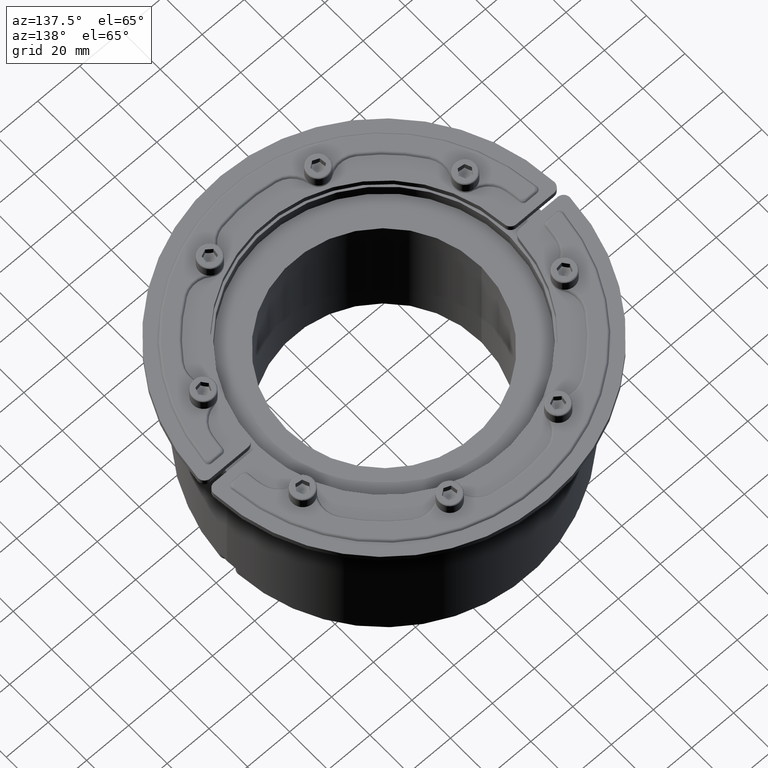
[diagram: clean part render]
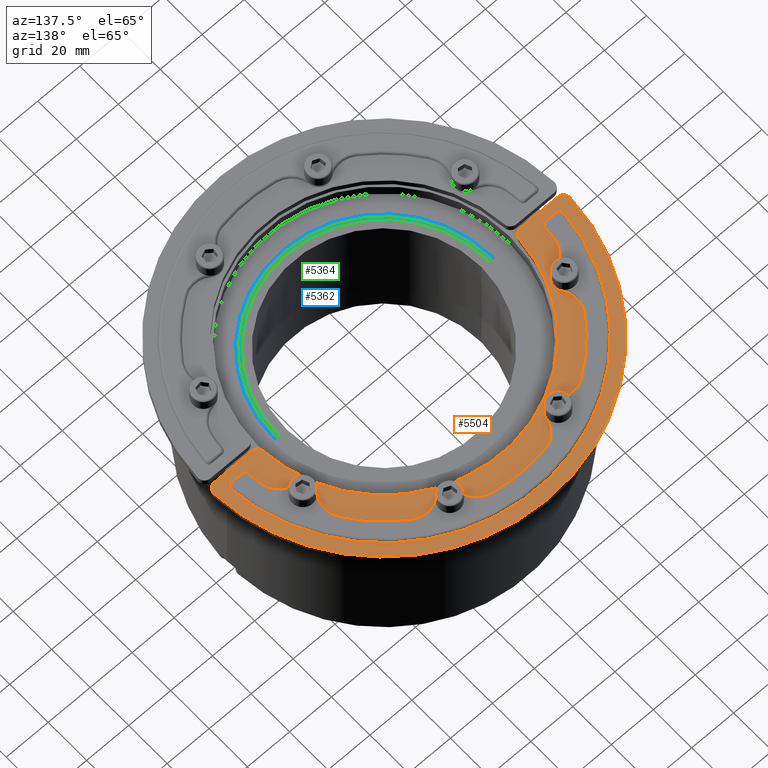
[diagram: same view with three faces highlighted in distinct colors, each labeled with its STEP entity id]
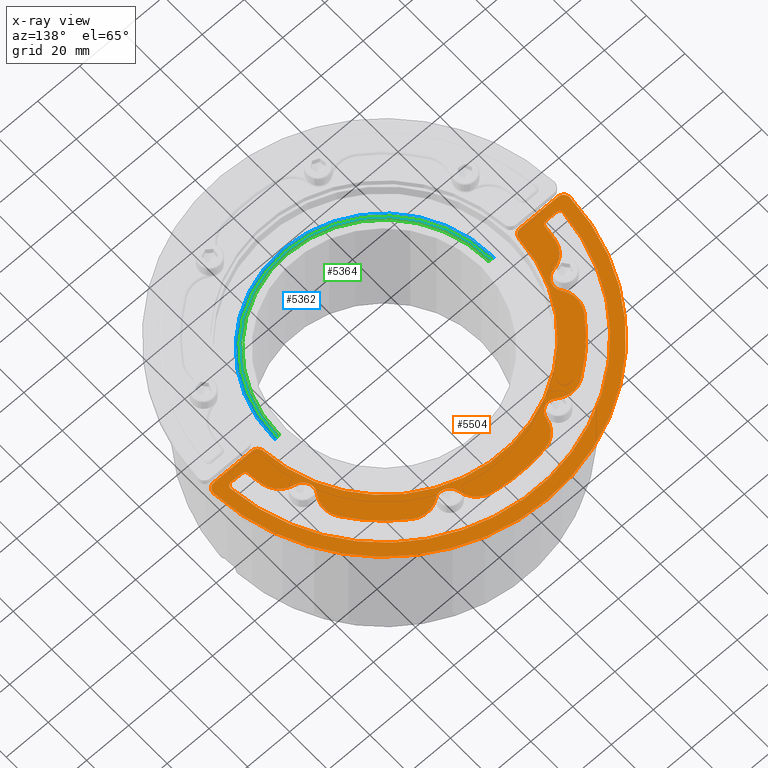
[diagram: x-ray of the same camera — body ghosted, the three highlighted faces saturated]
A machine part, auxiliary view with three faces highlighted in distinct colors.
The next image is the same camera in x-ray (body ghosted, the three faces saturated) — at least one of them is partly hidden behind the body in this view.
Their STEP definitions:

[orange] entity #5504 — the highlighted planar face has unit normal (0, 0, 1).
#60=B_SPLINE_CURVE_WITH_KNOTS('',3,(#9772,#9773,#9774,#9775,#9776,#9777,
#9778,#9779,#9780,#9781),.UNSPECIFIED.,.F.,.F.,(4,2,2,2,4),(0.,0.0737591383660685,
0.137984486119956,0.197526059319079,0.259689030170844),.UNSPECIFIED.);
#63=B_SPLINE_CURVE_WITH_KNOTS('',3,(#9814,#9815,#9816,#9817,#9818,#9819,
#9820,#9821,#9822,#9823,#9824,#9825),.UNSPECIFIED.,.F.,.F.,(4,2,2,2,2,4),
(0.,0.0768242660704358,0.140348230484178,0.20075593971541,0.245620467000132,
0.292974545126441),.UNSPECIFIED.);
#66=B_SPLINE_CURVE_WITH_KNOTS('',3,(#9859,#9860,#9861,#9862,#9863,#9864,
#9865,#9866,#9867,#9868),.UNSPECIFIED.,.F.,.F.,(4,2,2,2,4),(0.,0.0737731416211753,
0.138011891422635,0.200687434417592,0.259700462694515),.UNSPECIFIED.);
#69=B_SPLINE_CURVE_WITH_KNOTS('',3,(#9900,#9901,#9902,#9903,#9904,#9905,
#9906,#9907,#9908,#9909,#9910,#9911),.UNSPECIFIED.,.F.,.F.,(4,2,2,2,2,4),
(0.,0.0768437936843456,0.140401779394522,0.200734305158943,0.245638052211019,
0.292968852687228),.UNSPECIFIED.);
#125=FACE_BOUND('',#943,.T.);
#220=PLANE('',#6145);
#615=FACE_OUTER_BOUND('',#942,.T.);
#942=EDGE_LOOP('',(#4445,#4446,#4447,#4448,#4449,#4450,#4451,#4452));
#943=EDGE_LOOP('',(#4453,#4454,#4455,#4456,#4457,#4458,#4459,#4460,#4461,
#4462,#4463,#4464,#4465,#4466,#4467,#4468,#4469,#4470,#4471,#4472,#4473,
#4474,#4475,#4476));
#1238=LINE('',#9426,#1530);
#1244=LINE('',#9441,#1536);
#1261=LINE('',#9788,#1553);
#1262=LINE('',#9875,#1554);
#1530=VECTOR('',#7341,10.);
#1536=VECTOR('',#7357,10.);
#1553=VECTOR('',#7568,10.);
#1554=VECTOR('',#7575,10.);
#1866=CIRCLE('',#6021,3.);
#1867=CIRCLE('',#6024,3.);
#1868=CIRCLE('',#6026,3.);
#1870=CIRCLE('',#6030,3.);
#1922=CIRCLE('',#6103,5.);
#1923=CIRCLE('',#6105,9.99999999999993);
#1924=CIRCLE('',#6107,71.);
#1925=CIRCLE('',#6109,9.9999999999999);
#1926=CIRCLE('',#6111,5.);
#1927=CIRCLE('',#6113,9.99999999999993);
#1928=CIRCLE('',#6115,71.);
#1929=CIRCLE('',#6117,9.9999999999999);
#1930=CIRCLE('',#6119,5.);
#1931=CIRCLE('',#6121,9.99999999999993);
#1932=CIRCLE('',#6123,71.);
#1933=CIRCLE('',#6126,79.5);
#1934=CIRCLE('',#6129,71.);
#1935=CIRCLE('',#6131,9.9999999999999);
#1936=CIRCLE('',#6133,5.);
#1937=CIRCLE('',#6135,9.99999999999993);
#1938=CIRCLE('',#6137,71.);
#1939=CIRCLE('',#6139,9.9999999999999);
#1941=CIRCLE('',#6142,61.);
#1942=CIRCLE('',#6144,85.);
#2366=VERTEX_POINT('',#9419);
#2367=VERTEX_POINT('',#9421);
#2368=VERTEX_POINT('',#9425);
#2369=VERTEX_POINT('',#9430);
#2370=VERTEX_POINT('',#9434);
#2371=VERTEX_POINT('',#9436);
#2372=VERTEX_POINT('',#9440);
#2375=VERTEX_POINT('',#9448);
#2406=VERTEX_POINT('',#9699);
#2407=VERTEX_POINT('',#9701);
#2408=VERTEX_POINT('',#9705);
#2409=VERTEX_POINT('',#9709);
#2410=VERTEX_POINT('',#9713);
#2411=VERTEX_POINT('',#9717);
#2412=VERTEX_POINT('',#9721);
#2413=VERTEX_POINT('',#9725);
#2414=VERTEX_POINT('',#9729);
#2415=VERTEX_POINT('',#9733);
#2416=VERTEX_POINT('',#9737);
#2417=VERTEX_POINT('',#9741);
#2418=VERTEX_POINT('',#9767);
#2419=VERTEX_POINT('',#9783);
#2420=VERTEX_POINT('',#9809);
#2421=VERTEX_POINT('',#9827);
#2422=VERTEX_POINT('',#9853);
#2423=VERTEX_POINT('',#9858);
#2424=VERTEX_POINT('',#9874);
#2425=VERTEX_POINT('',#9913);
#2426=VERTEX_POINT('',#9917);
#2427=VERTEX_POINT('',#9921);
#2428=VERTEX_POINT('',#9925);
#2429=VERTEX_POINT('',#9929);
#3024=EDGE_CURVE('',#2366,#2367,#1866,.T.);
#3026=EDGE_CURVE('',#2368,#2367,#1238,.T.);
#3029=EDGE_CURVE('',#2368,#2369,#1867,.T.);
#3032=EDGE_CURVE('',#2370,#2371,#1868,.T.);
#3034=EDGE_CURVE('',#2372,#2371,#1244,.T.);
#3038=EDGE_CURVE('',#2372,#2375,#1870,.T.);
#3098=EDGE_CURVE('',#2407,#2406,#1922,.T.);
#3101=EDGE_CURVE('',#2406,#2408,#1923,.T.);
#3103=EDGE_CURVE('',#2408,#2409,#1924,.T.);
#3105=EDGE_CURVE('',#2409,#2410,#1925,.T.);
#3107=EDGE_CURVE('',#2410,#2411,#1926,.T.);
#3109=EDGE_CURVE('',#2411,#2412,#1927,.T.);
#3111=EDGE_CURVE('',#2412,#2413,#1928,.T.);
#3113=EDGE_CURVE('',#2413,#2414,#1929,.T.);
#3115=EDGE_CURVE('',#2414,#2415,#1930,.T.);
#3117=EDGE_CURVE('',#2415,#2416,#1931,.T.);
#3119=EDGE_CURVE('',#2416,#2417,#1932,.T.);
#3121=EDGE_CURVE('',#2418,#2417,#60,.F.);
#3123=EDGE_CURVE('',#2418,#2419,#1261,.T.);
#3125=EDGE_CURVE('',#2420,#2419,#63,.F.);
#3127=EDGE_CURVE('',#2420,#2421,#1933,.T.);
#3129=EDGE_CURVE('',#2422,#2423,#66,.F.);
#3131=EDGE_CURVE('',#2424,#2423,#1262,.T.);
#3133=EDGE_CURVE('',#2424,#2421,#69,.F.);
#3135=EDGE_CURVE('',#2422,#2425,#1934,.T.);
#3137=EDGE_CURVE('',#2425,#2426,#1935,.T.);
#3139=EDGE_CURVE('',#2426,#2427,#1936,.T.);
#3141=EDGE_CURVE('',#2427,#2428,#1937,.T.);
#3143=EDGE_CURVE('',#2428,#2429,#1938,.T.);
#3144=EDGE_CURVE('',#2429,#2407,#1939,.T.);
#3146=EDGE_CURVE('',#2366,#2375,#1941,.T.);
#3147=EDGE_CURVE('',#2370,#2369,#1942,.T.);
#4445=ORIENTED_EDGE('',*,*,#3024,.F.);
#4446=ORIENTED_EDGE('',*,*,#3146,.T.);
#4447=ORIENTED_EDGE('',*,*,#3038,.F.);
#4448=ORIENTED_EDGE('',*,*,#3034,.T.);
#4449=ORIENTED_EDGE('',*,*,#3032,.F.);
#4450=ORIENTED_EDGE('',*,*,#3147,.T.);
#4451=ORIENTED_EDGE('',*,*,#3029,.F.);
#4452=ORIENTED_EDGE('',*,*,#3026,.T.);
#4453=ORIENTED_EDGE('',*,*,#3131,.T.);
#4454=ORIENTED_EDGE('',*,*,#3129,.F.);
#4455=ORIENTED_EDGE('',*,*,#3135,.T.);
#4456=ORIENTED_EDGE('',*,*,#3137,.T.);
#4457=ORIENTED_EDGE('',*,*,#3139,.T.);
#4458=ORIENTED_EDGE('',*,*,#3141,.T.);
#4459=ORIENTED_EDGE('',*,*,#3143,.T.);
#4460=ORIENTED_EDGE('',*,*,#3144,.T.);
#4461=ORIENTED_EDGE('',*,*,#3098,.T.);
#4462=ORIENTED_EDGE('',*,*,#3101,.T.);
#4463=ORIENTED_EDGE('',*,*,#3103,.T.);
#4464=ORIENTED_EDGE('',*,*,#3105,.T.);
#4465=ORIENTED_EDGE('',*,*,#3107,.T.);
#4466=ORIENTED_EDGE('',*,*,#3109,.T.);
#4467=ORIENTED_EDGE('',*,*,#3111,.T.);
#4468=ORIENTED_EDGE('',*,*,#3113,.T.);
#4469=ORIENTED_EDGE('',*,*,#3115,.T.);
#4470=ORIENTED_EDGE('',*,*,#3117,.T.);
#4471=ORIENTED_EDGE('',*,*,#3119,.T.);
#4472=ORIENTED_EDGE('',*,*,#3121,.F.);
#4473=ORIENTED_EDGE('',*,*,#3123,.T.);
#4474=ORIENTED_EDGE('',*,*,#3125,.F.);
#4475=ORIENTED_EDGE('',*,*,#3127,.T.);
#4476=ORIENTED_EDGE('',*,*,#3133,.F.);
#5504=ADVANCED_FACE('',(#615,#125),#220,.T.);
#6021=AXIS2_PLACEMENT_3D('',#9422,#7336,#7337);
#6024=AXIS2_PLACEMENT_3D('',#9431,#7346,#7347);
#6026=AXIS2_PLACEMENT_3D('',#9437,#7352,#7353);
#6030=AXIS2_PLACEMENT_3D('',#9449,#7364,#7365);
#6103=AXIS2_PLACEMENT_3D('',#9702,#7514,#7515);
#6105=AXIS2_PLACEMENT_3D('',#9707,#7520,#7521);
#6107=AXIS2_PLACEMENT_3D('',#9711,#7525,#7526);
#6109=AXIS2_PLACEMENT_3D('',#9715,#7530,#7531);
#6111=AXIS2_PLACEMENT_3D('',#9719,#7535,#7536);
#6113=AXIS2_PLACEMENT_3D('',#9723,#7540,#7541);
#6115=AXIS2_PLACEMENT_3D('',#9727,#7545,#7546);
#6117=AXIS2_PLACEMENT_3D('',#9731,#7550,#7551);
#6119=AXIS2_PLACEMENT_3D('',#9735,#7555,#7556);
#6121=AXIS2_PLACEMENT_3D('',#9739,#7560,#7561);
#6123=AXIS2_PLACEMENT_3D('',#9746,#7564,#7565);
#6126=AXIS2_PLACEMENT_3D('',#9832,#7571,#7572);
#6129=AXIS2_PLACEMENT_3D('',#9915,#7579,#7580);
#6131=AXIS2_PLACEMENT_3D('',#9919,#7584,#7585);
#6133=AXIS2_PLACEMENT_3D('',#9923,#7589,#7590);
#6135=AXIS2_PLACEMENT_3D('',#9927,#7594,#7595);
#6137=AXIS2_PLACEMENT_3D('',#9931,#7599,#7600);
#6139=AXIS2_PLACEMENT_3D('',#9933,#7603,#7604);
#6142=AXIS2_PLACEMENT_3D('',#9936,#7609,#7610);
#6144=AXIS2_PLACEMENT_3D('',#9938,#7613,#7614);
#6145=AXIS2_PLACEMENT_3D('',#9939,#7615,#7616);
#7336=DIRECTION('center_axis',(0.,0.,-1.));
#7337=DIRECTION('ref_axis',(0.684653196881456,-0.728868986855664,0.));
#7341=DIRECTION('',(1.,0.,0.));
#7346=DIRECTION('center_axis',(0.,0.,-1.));
#7347=DIRECTION('ref_axis',(-0.724147943380659,-0.689644659297498,0.));
#7352=DIRECTION('center_axis',(0.,0.,-1.));
#7353=DIRECTION('ref_axis',(0.724147943380658,-0.689644659297499,0.));
#7357=DIRECTION('',(1.,0.,0.));
#7364=DIRECTION('center_axis',(0.,0.,-1.));
#7365=DIRECTION('ref_axis',(-0.684653196881457,-0.728868986855663,0.));
#7514=DIRECTION('center_axis',(0.,0.,-1.));
#7515=DIRECTION('ref_axis',(-0.987489011013653,-0.157687834430174,0.));
#7520=DIRECTION('center_axis',(0.,0.,1.));
#7521=DIRECTION('ref_axis',(-0.987489011013653,-0.15768783443017,0.));
#7525=DIRECTION('center_axis',(0.,0.,1.));
#7526=DIRECTION('ref_axis',(-0.18063600851539,-0.983550015214086,0.));
#7530=DIRECTION('center_axis',(0.,0.,1.));
#7531=DIRECTION('ref_axis',(0.180636008515384,-0.983550015214087,0.));
#7535=DIRECTION('center_axis',(0.,0.,-1.));
#7536=DIRECTION('ref_axis',(-0.586758038998754,-0.809762313071148,0.));
#7540=DIRECTION('center_axis',(0.,0.,1.));
#7541=DIRECTION('ref_axis',(-0.586758038998757,-0.809762313071147,0.));
#7545=DIRECTION('center_axis',(0.,0.,1.));
#7546=DIRECTION('ref_axis',(0.567745938846309,-0.823203831941715,0.));
#7550=DIRECTION('center_axis',(0.,0.,1.));
#7551=DIRECTION('ref_axis',(0.823203831941712,-0.567745938846313,0.));
#7555=DIRECTION('center_axis',(0.,0.,-1.));
#7556=DIRECTION('ref_axis',(0.157687834430174,-0.987489011013653,0.));
#7560=DIRECTION('center_axis',(0.,0.,1.));
#7561=DIRECTION('ref_axis',(0.15768783443017,-0.987489011013653,0.));
#7564=DIRECTION('center_axis',(0.,0.,1.));
#7565=DIRECTION('ref_axis',(0.983550015214086,-0.18063600851539,0.));
#7568=DIRECTION('',(-1.,0.,0.));
#7571=DIRECTION('center_axis',(0.,0.,-1.));
#7572=DIRECTION('ref_axis',(0.998020270468793,0.0628930817610063,0.));
#7575=DIRECTION('',(-1.,0.,0.));
#7579=DIRECTION('center_axis',(0.,0.,1.));
#7580=DIRECTION('ref_axis',(-0.997517251246522,-0.0704225352112676,0.));
#7584=DIRECTION('center_axis',(0.,0.,1.));
#7585=DIRECTION('ref_axis',(-0.983550015214087,-0.180636008515384,0.));
#7589=DIRECTION('center_axis',(0.,0.,-1.));
#7590=DIRECTION('ref_axis',(-0.809762313071148,0.586758038998754,0.));
#7594=DIRECTION('center_axis',(0.,0.,1.));
#7595=DIRECTION('ref_axis',(-0.809762313071147,0.586758038998757,0.));
#7599=DIRECTION('center_axis',(0.,0.,1.));
#7600=DIRECTION('ref_axis',(-0.823203831941715,-0.567745938846309,0.));
#7603=DIRECTION('center_axis',(0.,0.,1.));
#7604=DIRECTION('ref_axis',(-0.567745938846314,-0.823203831941712,0.));
#7609=DIRECTION('center_axis',(0.,0.,-1.));
#7610=DIRECTION('ref_axis',(-0.999865618490289,-0.0163934426229508,0.));
#7613=DIRECTION('center_axis',(0.,0.,1.));
#7614=DIRECTION('ref_axis',(0.999930793452978,0.0117647058823529,0.));
#7615=DIRECTION('center_axis',(0.,0.,1.));
#7616=DIRECTION('ref_axis',(1.,0.,0.));
#9419=CARTESIAN_POINT('',(-60.8807427989344,3.8125,3.));
#9421=CARTESIAN_POINT('',(-63.8748776906853,1.,3.));
#9422=CARTESIAN_POINT('Origin',(-63.8748776906853,4.,3.));
#9425=CARTESIAN_POINT('',(-81.9023809177731,1.,3.));
#9426=CARTESIAN_POINT('',(-84.9941174435031,1.,3.));
#9430=CARTESIAN_POINT('',(-84.8988094879355,4.14634146341463,3.));
#9431=CARTESIAN_POINT('Origin',(-81.9023809177731,3.99999999999999,3.));
#9434=CARTESIAN_POINT('',(84.8988094879355,4.14634146341463,3.));
#9436=CARTESIAN_POINT('',(81.9023809177731,1.,3.));
#9437=CARTESIAN_POINT('Origin',(81.9023809177731,4.,3.));
#9440=CARTESIAN_POINT('',(63.8748776906853,1.,3.));
#9441=CARTESIAN_POINT('',(60.9918027279076,1.,3.));
#9448=CARTESIAN_POINT('',(60.8807427989344,3.81250000000001,3.));
#9449=CARTESIAN_POINT('Origin',(63.8748776906853,4.00000000000001,3.));
#9699=CARTESIAN_POINT('',(20.8936866295753,61.573429272361,3.));
#9701=CARTESIAN_POINT('',(28.7649218796373,58.3130568791561,3.));
#9702=CARTESIAN_POINT('Origin',(25.8311316846436,62.3618684445118,3.));
#9705=CARTESIAN_POINT('',(12.8251566045927,69.8320510802001,3.));
#9707=CARTESIAN_POINT('Origin',(11.0187965194389,59.9965509280593,3.));
#9709=CARTESIAN_POINT('',(-12.8251566045927,69.8320510802001,3.));
#9711=CARTESIAN_POINT('Origin',(0.,0.,3.));
#9713=CARTESIAN_POINT('',(-20.8936866295753,61.573429272361,3.));
#9715=CARTESIAN_POINT('Origin',(-11.0187965194388,59.9965509280593,3.));
#9717=CARTESIAN_POINT('',(-28.7649218796373,58.3130568791561,3.));
#9719=CARTESIAN_POINT('Origin',(-25.8311316846435,62.3618684445119,3.));
#9721=CARTESIAN_POINT('',(-40.3099616580879,58.4474720678618,3.));
#9723=CARTESIAN_POINT('Origin',(-34.6325022696248,50.2154337484447,3.));
#9725=CARTESIAN_POINT('',(-58.4474720678618,40.3099616580879,3.));
#9727=CARTESIAN_POINT('Origin',(0.,0.,3.));
#9729=CARTESIAN_POINT('',(-58.3130568791561,28.7649218796373,3.));
#9731=CARTESIAN_POINT('Origin',(-50.2154337484447,34.6325022696249,3.));
#9733=CARTESIAN_POINT('',(-61.573429272361,20.8936866295753,3.));
#9735=CARTESIAN_POINT('Origin',(-62.3618684445118,25.8311316846436,3.));
#9737=CARTESIAN_POINT('',(-69.8320510802001,12.8251566045927,3.));
#9739=CARTESIAN_POINT('Origin',(-59.9965509280593,11.0187965194389,3.));
#9741=CARTESIAN_POINT('',(-70.6952072465394,6.57173284908086,3.00000000165182));
#9746=CARTESIAN_POINT('Origin',(0.,0.,3.));
#9767=CARTESIAN_POINT('',(-72.4198226101459,5.00000000108296,3.00000000187574));
#9772=CARTESIAN_POINT('Ctrl Pts',(-70.6952072447973,6.57173284721472,3.));
#9773=CARTESIAN_POINT('Ctrl Pts',(-70.7179643035946,6.32692451045477,3.));
#9774=CARTESIAN_POINT('Ctrl Pts',(-70.7836218728499,6.08855457425565,3.00000000000062));
#9775=CARTESIAN_POINT('Ctrl Pts',(-70.9982263399093,5.68293269670202,3.00000000000062));
#9776=CARTESIAN_POINT('Ctrl Pts',(-71.1320919970651,5.51680846078488,3.00000000000001));
#9777=CARTESIAN_POINT('Ctrl Pts',(-71.4498148394007,5.25551816030516,3.00000000000001));
#9778=CARTESIAN_POINT('Ctrl Pts',(-71.6236417622012,5.16071898650154,3.));
#9779=CARTESIAN_POINT('Ctrl Pts',(-72.0070039999619,5.03074311381591,3.));
#9780=CARTESIAN_POINT('Ctrl Pts',(-72.2127715174494,5.,3.));
#9781=CARTESIAN_POINT('Ctrl Pts',(-72.4198226081719,5.,3.));
#9783=CARTESIAN_POINT('',(-77.4760183160204,4.99999999827377,2.99999999701008));
#9788=CARTESIAN_POINT('',(-35.4118624192515,5.,3.));
#9809=CARTESIAN_POINT('',(-79.2015672279042,6.88198730277633,2.99999999677662));
#9814=CARTESIAN_POINT('Ctrl Pts',(-77.4760183122549,5.,3.));
#9815=CARTESIAN_POINT('Ctrl Pts',(-77.7320991991564,5.,3.));
#9816=CARTESIAN_POINT('Ctrl Pts',(-77.9866213128213,5.04377399056023,3.00000000000213));
#9817=CARTESIAN_POINT('Ctrl Pts',(-78.4175396454987,5.22233978961188,3.00000000000213));
#9818=CARTESIAN_POINT('Ctrl Pts',(-78.593972409158,5.33779153865158,3.00000000000006));
#9819=CARTESIAN_POINT('Ctrl Pts',(-78.8840297755733,5.62963705870245,3.00000000000006));
#9820=CARTESIAN_POINT('Ctrl Pts',(-78.9943477429331,5.79679540073826,3.));
#9821=CARTESIAN_POINT('Ctrl Pts',(-79.1299384632839,6.11916056545891,3.));
#9822=CARTESIAN_POINT('Ctrl Pts',(-79.1685912142564,6.26348580365903,3.));
#9823=CARTESIAN_POINT('Ctrl Pts',(-79.2122976364288,6.56688685896126,3.));
#9824=CARTESIAN_POINT('Ctrl Pts',(-79.2152026772048,6.72506326293172,3.));
#9825=CARTESIAN_POINT('Ctrl Pts',(-79.2015672238369,6.88198730658844,3.));
#9827=CARTESIAN_POINT('',(79.2015672278917,6.88198730278802,2.9999999967865));
#9832=CARTESIAN_POINT('Origin',(0.,0.,3.));
#9853=CARTESIAN_POINT('',(70.6952072465408,6.57173284908236,3.00000000165315));
#9858=CARTESIAN_POINT('',(72.4198226101474,5.0000000010838,3.0000000018772));
#9859=CARTESIAN_POINT('Ctrl Pts',(72.419822608172,5.,3.));
#9860=CARTESIAN_POINT('Ctrl Pts',(72.1739121361014,5.,3.));
#9861=CARTESIAN_POINT('Ctrl Pts',(71.930424759056,5.04336574928163,3.00000000000055));
#9862=CARTESIAN_POINT('Ctrl Pts',(71.5066138309337,5.21958448933774,3.00000000000055));
#9863=CARTESIAN_POINT('Ctrl Pts',(71.32876799456,5.33754297747484,3.00000000000001));
#9864=CARTESIAN_POINT('Ctrl Pts',(71.0318560191459,5.63718692445665,3.00000000000001));
#9865=CARTESIAN_POINT('Ctrl Pts',(70.9173064832529,5.8113351009545,3.));
#9866=CARTESIAN_POINT('Ctrl Pts',(70.759057259348,6.18393605820334,3.));
#9867=CARTESIAN_POINT('Ctrl Pts',(70.7134003213157,6.37602140477026,3.));
#9868=CARTESIAN_POINT('Ctrl Pts',(70.6952072447973,6.57173284721472,3.));
#9874=CARTESIAN_POINT('',(77.4760183160088,4.99999999827907,2.99999999701925));
#9875=CARTESIAN_POINT('',(39.6713057511345,5.,3.));
#9900=CARTESIAN_POINT('Ctrl Pts',(79.2015672238369,6.88198730658844,3.));
#9901=CARTESIAN_POINT('Ctrl Pts',(79.2237407254187,6.62680286670478,3.));
#9902=CARTESIAN_POINT('Ctrl Pts',(79.202082399095,6.36936451716731,3.00000000000188));
#9903=CARTESIAN_POINT('Ctrl Pts',(79.0613586360234,5.92446411920917,3.00000000000188));
#9904=CARTESIAN_POINT('Ctrl Pts',(78.9615231084649,5.73858981422159,3.00000000000006));
#9905=CARTESIAN_POINT('Ctrl Pts',(78.6959043048602,5.42451271707249,3.00000000000006));
#9906=CARTESIAN_POINT('Ctrl Pts',(78.5391359242237,5.30029242051092,2.99999999999999));
#9907=CARTESIAN_POINT('Ctrl Pts',(78.2298360810746,5.13731964546412,2.99999999999999));
#9908=CARTESIAN_POINT('Ctrl Pts',(78.0892744102729,5.08629260453194,3.));
#9909=CARTESIAN_POINT('Ctrl Pts',(77.7907185265804,5.01654632699665,3.));
#9910=CARTESIAN_POINT('Ctrl Pts',(77.6334600580174,5.00000000000001,3.));
#9911=CARTESIAN_POINT('Ctrl Pts',(77.4760183122549,5.00000000000001,3.));
#9913=CARTESIAN_POINT('',(69.8320510802001,12.8251566045927,3.));
#9915=CARTESIAN_POINT('Origin',(0.,0.,3.));
#9917=CARTESIAN_POINT('',(61.573429272361,20.8936866295753,3.));
#9919=CARTESIAN_POINT('Origin',(59.9965509280593,11.0187965194388,3.));
#9921=CARTESIAN_POINT('',(58.3130568791561,28.7649218796373,3.));
#9923=CARTESIAN_POINT('Origin',(62.3618684445119,25.8311316846435,3.));
#9925=CARTESIAN_POINT('',(58.4474720678618,40.3099616580879,3.));
#9927=CARTESIAN_POINT('Origin',(50.2154337484447,34.6325022696248,3.));
#9929=CARTESIAN_POINT('',(40.3099616580879,58.4474720678618,3.));
#9931=CARTESIAN_POINT('Origin',(0.,0.,3.));
#9933=CARTESIAN_POINT('Origin',(34.6325022696249,50.2154337484447,3.));
#9936=CARTESIAN_POINT('Origin',(0.,0.,3.));
#9938=CARTESIAN_POINT('Origin',(0.,0.,3.));
#9939=CARTESIAN_POINT('Origin',(6.8495479157064E-16,42.327142609845,3.));

[blue] entity #5362 — the highlighted planar face has unit normal (0, 0, 1).
#158=PLANE('',#5822);
#473=FACE_OUTER_BOUND('',#792,.T.);
#792=EDGE_LOOP('',(#3772,#3773,#3774,#3775));
#1114=LINE('',#8832,#1406);
#1115=LINE('',#8836,#1407);
#1406=VECTOR('',#6817,10.);
#1407=VECTOR('',#6820,10.);
#1754=CIRCLE('',#5823,52.125);
#1755=CIRCLE('',#5824,51.);
#2184=VERTEX_POINT('',#8830);
#2185=VERTEX_POINT('',#8831);
#2186=VERTEX_POINT('',#8833);
#2187=VERTEX_POINT('',#8835);
#2764=EDGE_CURVE('',#2184,#2185,#1114,.T.);
#2765=EDGE_CURVE('',#2186,#2184,#1754,.T.);
#2766=EDGE_CURVE('',#2187,#2186,#1115,.T.);
#2767=EDGE_CURVE('',#2187,#2185,#1755,.T.);
#3772=ORIENTED_EDGE('',*,*,#2764,.F.);
#3773=ORIENTED_EDGE('',*,*,#2765,.F.);
#3774=ORIENTED_EDGE('',*,*,#2766,.F.);
#3775=ORIENTED_EDGE('',*,*,#2767,.T.);
#5362=ADVANCED_FACE('',(#473),#158,.T.);
#5822=AXIS2_PLACEMENT_3D('',#8829,#6815,#6816);
#5823=AXIS2_PLACEMENT_3D('',#8834,#6818,#6819);
#5824=AXIS2_PLACEMENT_3D('',#8837,#6821,#6822);
#6815=DIRECTION('center_axis',(0.,0.,1.));
#6816=DIRECTION('ref_axis',(-1.,3.44509284839767E-16,0.));
#6817=DIRECTION('',(1.,-2.22044604925031E-16,0.));
#6818=DIRECTION('center_axis',(0.,0.,-1.));
#6819=DIRECTION('ref_axis',(1.,-3.44509284839767E-16,0.));
#6820=DIRECTION('',(1.,-9.9579925010296E-17,0.));
#6821=DIRECTION('center_axis',(0.,0.,-1.));
#6822=DIRECTION('ref_axis',(1.,-3.44509284839767E-16,0.));
#8829=CARTESIAN_POINT('Origin',(51.5625,-2.46526938673496E-14,-5.75));
#8830=CARTESIAN_POINT('',(-52.125,1.84630088995163E-14,-5.75));
#8831=CARTESIAN_POINT('',(-51.,1.82132087189757E-14,-5.75));
#8832=CARTESIAN_POINT('',(-52.125,1.84630088995163E-14,-5.75));
#8833=CARTESIAN_POINT('',(52.125,1.69833027663741E-15,-5.75));
#8834=CARTESIAN_POINT('Origin',(-8.43651081073795E-31,-6.88893386779909E-15,
-5.75));
#8835=CARTESIAN_POINT('',(51.,1.81035769227399E-15,-5.75));
#8836=CARTESIAN_POINT('',(52.125,1.69833027663741E-15,-5.75));
#8837=CARTESIAN_POINT('Origin',(-8.43651081073795E-31,-6.88893386779909E-15,
-5.75));

[green] entity #5364 — the highlighted planar face has unit normal (0, 0, 1).
#160=PLANE('',#5828);
#475=FACE_OUTER_BOUND('',#794,.T.);
#794=EDGE_LOOP('',(#3780,#3781,#3782,#3783));
#1118=LINE('',#8848,#1410);
#1119=LINE('',#8849,#1411);
#1410=VECTOR('',#6833,10.);
#1411=VECTOR('',#6834,10.);
#1755=CIRCLE('',#5824,51.);
#1756=CIRCLE('',#5826,49.875);
#2185=VERTEX_POINT('',#8831);
#2187=VERTEX_POINT('',#8835);
#2188=VERTEX_POINT('',#8839);
#2190=VERTEX_POINT('',#8842);
#2767=EDGE_CURVE('',#2187,#2185,#1755,.T.);
#2769=EDGE_CURVE('',#2190,#2188,#1756,.T.);
#2772=EDGE_CURVE('',#2185,#2188,#1118,.T.);
#2773=EDGE_CURVE('',#2190,#2187,#1119,.T.);
#3780=ORIENTED_EDGE('',*,*,#2772,.F.);
#3781=ORIENTED_EDGE('',*,*,#2767,.F.);
#3782=ORIENTED_EDGE('',*,*,#2773,.F.);
#3783=ORIENTED_EDGE('',*,*,#2769,.T.);
#5364=ADVANCED_FACE('',(#475),#160,.T.);
#5824=AXIS2_PLACEMENT_3D('',#8837,#6821,#6822);
#5826=AXIS2_PLACEMENT_3D('',#8843,#6826,#6827);
#5828=AXIS2_PLACEMENT_3D('',#8847,#6831,#6832);
#6821=DIRECTION('center_axis',(0.,0.,-1.));
#6822=DIRECTION('ref_axis',(1.,-3.44509284839767E-16,0.));
#6826=DIRECTION('center_axis',(0.,0.,-1.));
#6827=DIRECTION('ref_axis',(1.,-3.44509284839767E-16,0.));
#6831=DIRECTION('center_axis',(0.,0.,1.));
#6832=DIRECTION('ref_axis',(-1.,3.44509284839767E-16,0.));
#6833=DIRECTION('',(1.,-2.22044604925031E-16,0.));
#6834=DIRECTION('',(1.,-9.9579925010296E-17,0.));
#8831=CARTESIAN_POINT('',(-51.,1.82132087189757E-14,-5.75));
#8835=CARTESIAN_POINT('',(51.,1.81035769227399E-15,-5.75));
#8837=CARTESIAN_POINT('Origin',(-8.43651081073795E-31,-6.88893386779909E-15,
-5.75));
#8839=CARTESIAN_POINT('',(-49.875,1.7963408538435E-14,-5.75));
#8842=CARTESIAN_POINT('',(49.875,1.92238510791057E-15,-5.75));
#8843=CARTESIAN_POINT('Origin',(-8.43651081073795E-31,-6.88893386779909E-15,
-5.75));
#8847=CARTESIAN_POINT('Origin',(50.4375,-2.42651209219048E-14,-5.75));
#8848=CARTESIAN_POINT('',(-51.,1.82132087189757E-14,-5.75));
#8849=CARTESIAN_POINT('',(51.,1.81035769227399E-15,-5.75));